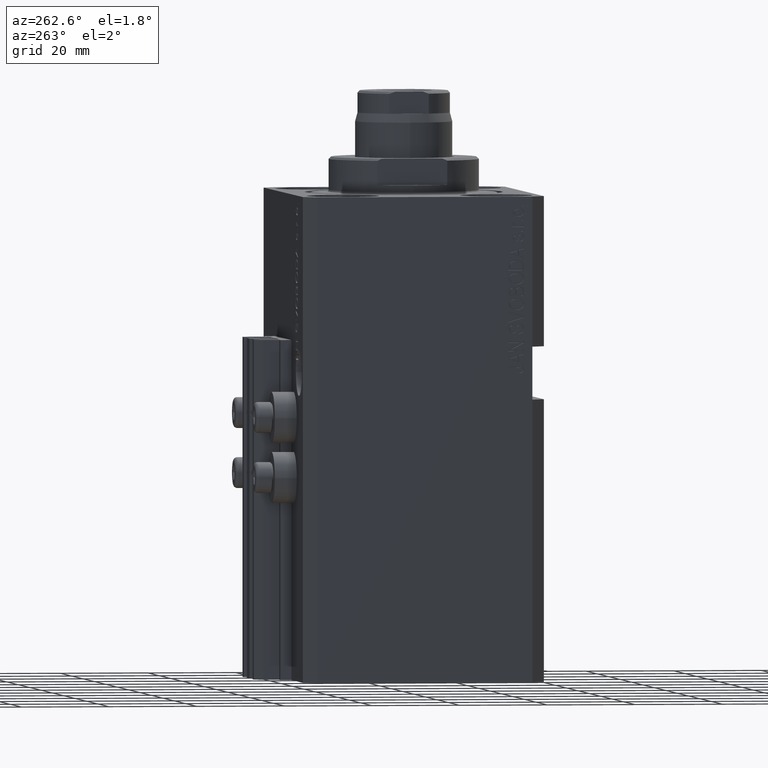
[diagram: clean part render]
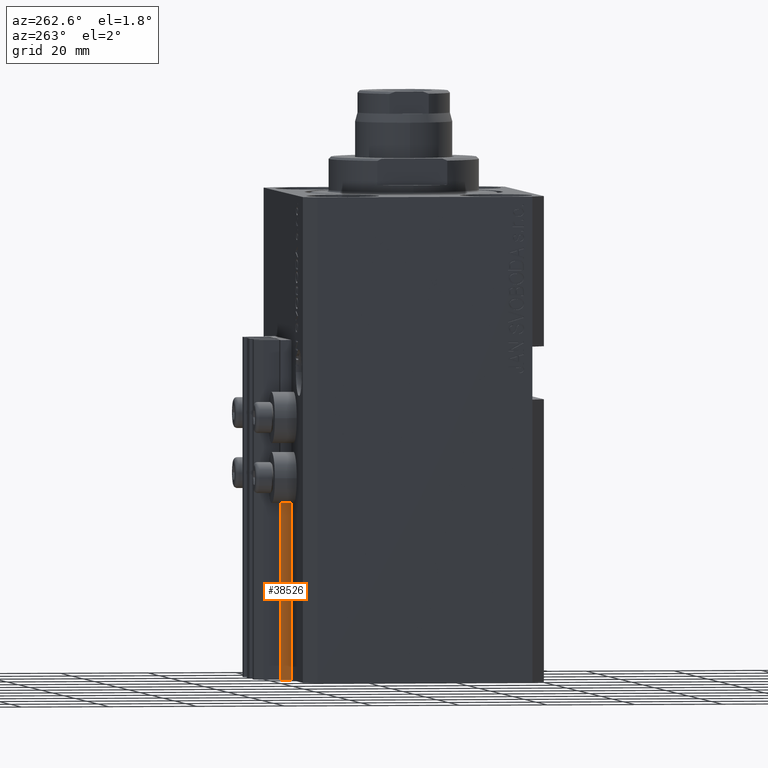
[diagram: same view with one face highlighted and labeled with its STEP entity id]
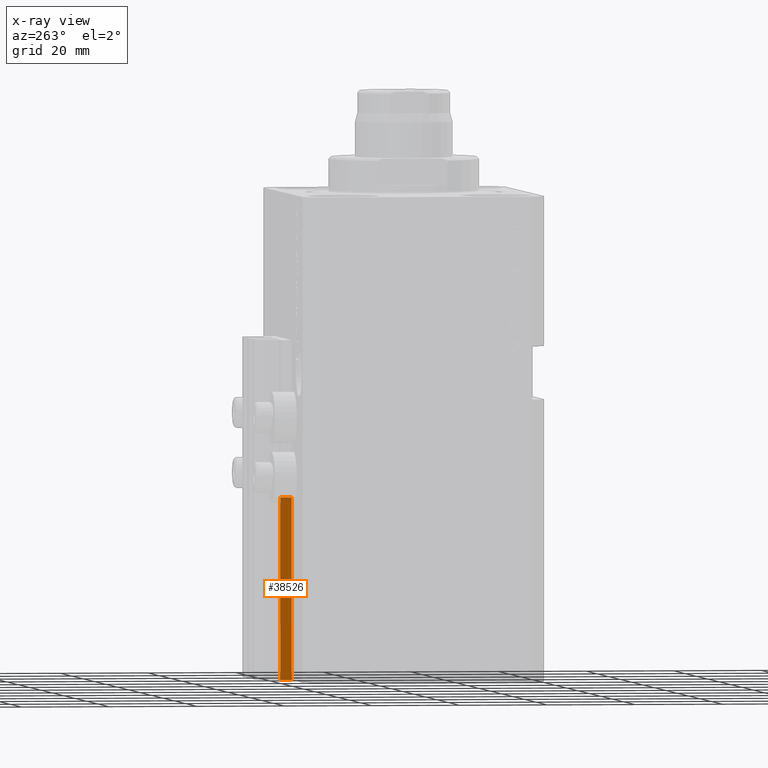
[diagram: x-ray of the same camera — body ghosted, the highlighted face saturated]
A machine part, auxiliary view. The second image highlights one B-rep face of the part: STEP entity #38526.
The next image is the same camera in x-ray: the body ghosted, the highlighted face saturated — about 0% of this face is hidden behind the body in this view.
In plain terms, the highlighted planar face has unit normal (-1, 0, 0).
Its self-contained STEP definition (entity closure, byte-faithful):
#2412 = VECTOR ( 'NONE', #13064, 1000.000000000000000 ) ;
#2707 = EDGE_CURVE ( 'NONE', #26641, #30125, #16149, .T. ) ;
#5494 = LINE ( 'NONE', #24448, #9664 ) ;
#6432 = DIRECTION ( 'NONE',  ( -6.938893903961350152E-16, 1.000000000000000000, 0.000000000000000000 ) ) ;
#7183 = DIRECTION ( 'NONE',  ( -1.000000000000000000, 0.000000000000000000, 0.000000000000000000 ) ) ;
#7431 = PLANE ( 'NONE',  #33701 ) ;
#9664 = VECTOR ( 'NONE', #6432, 1000.000000000000000 ) ;
#10117 = CARTESIAN_POINT ( 'NONE',  ( -14.50000000000000000, 29.99999999999999289, -110.0000000000000000 ) ) ;
#10138 = CARTESIAN_POINT ( 'NONE',  ( -14.50000000000000000, 27.50000000000000355, -110.0000000000000000 ) ) ;
#12202 = VERTEX_POINT ( 'NONE', #26491 ) ;
#12985 = ORIENTED_EDGE ( 'NONE', *, *, #24648, .T. ) ;
#13064 = DIRECTION ( 'NONE',  ( 0.000000000000000000, -1.000000000000000000, 0.000000000000000000 ) ) ;
#13671 = LINE ( 'NONE', #10138, #15223 ) ;
#14649 = VERTEX_POINT ( 'NONE', #20230 ) ;
#15223 = VECTOR ( 'NONE', #16544, 1000.000000000000000 ) ;
#15397 = ORIENTED_EDGE ( 'NONE', *, *, #2707, .T. ) ;
#16149 = LINE ( 'NONE', #24214, #2412 ) ;
#16544 = DIRECTION ( 'NONE',  ( 0.000000000000000000, 0.000000000000000000, 1.000000000000000000 ) ) ;
#18782 = DIRECTION ( 'NONE',  ( 0.000000000000000000, 0.000000000000000000, 1.000000000000000000 ) ) ;
#19770 = EDGE_CURVE ( 'NONE', #26641, #12202, #28127, .T. ) ;
#20230 = CARTESIAN_POINT ( 'NONE',  ( -14.50000000000000000, 27.50000000000000000, -68.62493243193887338 ) ) ;
#21010 = DIRECTION ( 'NONE',  ( 0.000000000000000000, 0.000000000000000000, 1.000000000000000000 ) ) ;
#24214 = CARTESIAN_POINT ( 'NONE',  ( -14.50000000000000000, 29.99999999999999289, -110.0000000000000000 ) ) ;
#24448 = CARTESIAN_POINT ( 'NONE',  ( -14.50000000000000000, 32.49999999996099831, -68.62493243193887338 ) ) ;
#24648 = EDGE_CURVE ( 'NONE', #30125, #14649, #13671, .T. ) ;
#25997 = CARTESIAN_POINT ( 'NONE',  ( -14.50000000000000000, 27.50000000000000355, -110.0000000000000000 ) ) ;
#26491 = CARTESIAN_POINT ( 'NONE',  ( -14.50000000000000000, 29.99999999999999289, -68.62493243193887338 ) ) ;
#26641 = VERTEX_POINT ( 'NONE', #42822 ) ;
#28127 = LINE ( 'NONE', #10117, #36872 ) ;
#28652 = ORIENTED_EDGE ( 'NONE', *, *, #19770, .F. ) ;
#29455 = CARTESIAN_POINT ( 'NONE',  ( -14.50000000000000000, 29.99999999999999289, -110.0000000000000000 ) ) ;
#30125 = VERTEX_POINT ( 'NONE', #25997 ) ;
#33701 = AXIS2_PLACEMENT_3D ( 'NONE', #29455, #7183, #18782 ) ;
#36083 = FACE_OUTER_BOUND ( 'NONE', #45372, .T. ) ;
#36872 = VECTOR ( 'NONE', #21010, 1000.000000000000000 ) ;
#38526 = ADVANCED_FACE ( 'NONE', ( #36083 ), #7431, .T. ) ;
#41253 = ORIENTED_EDGE ( 'NONE', *, *, #45987, .T. ) ;
#42822 = CARTESIAN_POINT ( 'NONE',  ( -14.50000000000000000, 29.99999999999999289, -110.0000000000000000 ) ) ;
#45372 = EDGE_LOOP ( 'NONE', ( #12985, #41253, #28652, #15397 ) ) ;
#45987 = EDGE_CURVE ( 'NONE', #14649, #12202, #5494, .T. ) ;